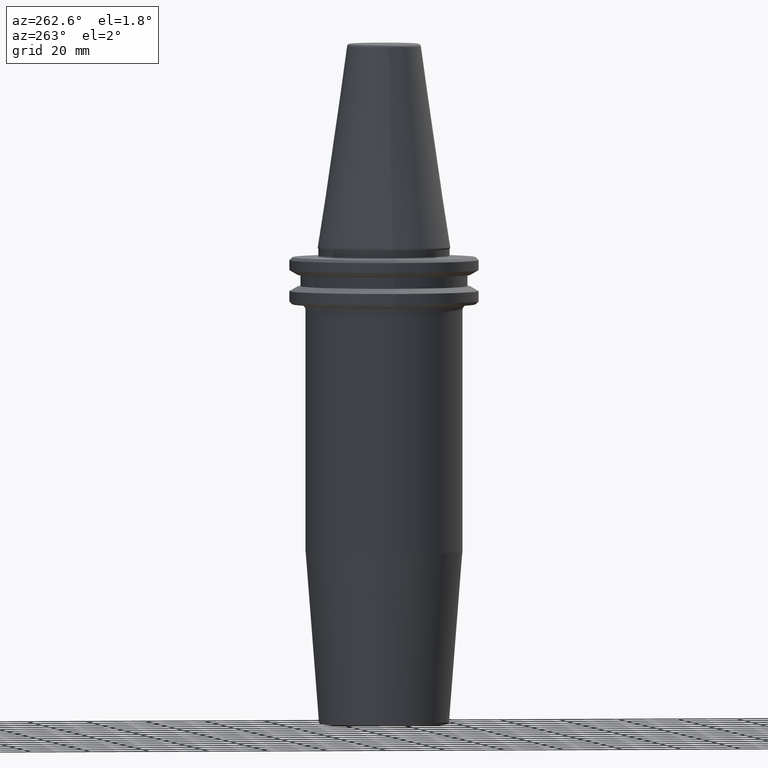
[diagram: clean part render]
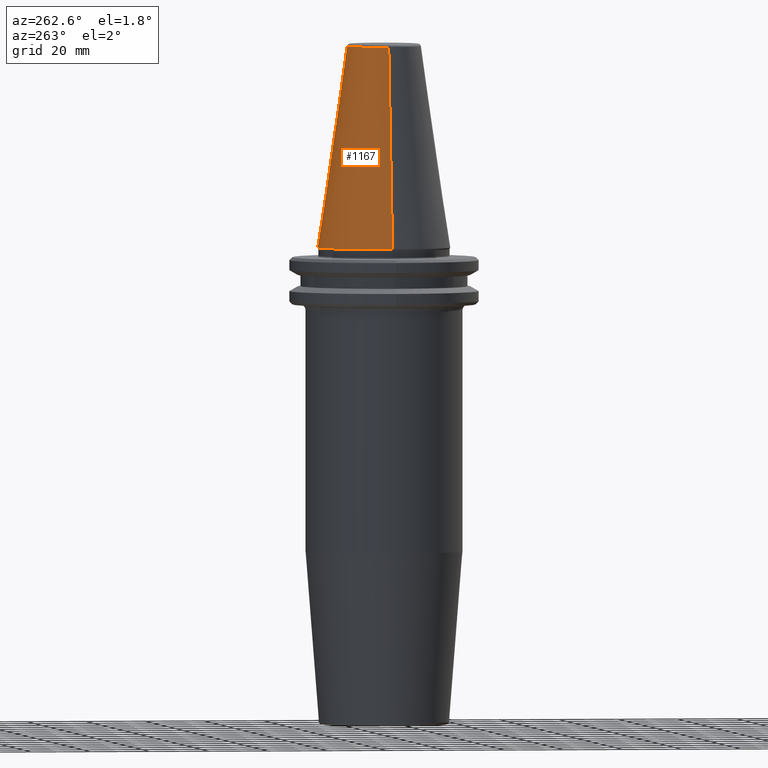
[diagram: same view with one face highlighted and labeled with its STEP entity id]
A machine part, auxiliary view. The second image highlights one B-rep face of the part: STEP entity #1167.
In plain terms, the highlighted conical surface has half-angle 8.297 deg.
Its self-contained STEP definition (entity closure, byte-faithful):
#26 = CARTESIAN_POINT ( 'NONE',  ( -12.37469537611110800, 0.0000000000000000000, 67.54430822726729400 ) ) ;
#55 = ORIENTED_EDGE ( 'NONE', *, *, #103, .T. ) ;
#61 = AXIS2_PLACEMENT_3D ( 'NONE', #828, #926, #352 ) ;
#86 = LINE ( 'NONE', #26, #1094 ) ;
#103 = EDGE_CURVE ( 'NONE', #1220, #816, #763, .T. ) ;
#170 = LINE ( 'NONE', #820, #1165 ) ;
#210 = CARTESIAN_POINT ( 'NONE',  ( -22.22500000000000500, 2.721777511104993200E-015, 0.0000000000000000000 ) ) ;
#211 = CARTESIAN_POINT ( 'NONE',  ( 12.37469537611110800, 2.118620309691397700E-015, 67.54430822726729400 ) ) ;
#232 = DIRECTION ( 'NONE',  ( -0.1443082272673071000, 0.0000000000000000000, -0.9895327864921743500 ) ) ;
#277 = VERTEX_POINT ( 'NONE', #211 ) ;
#280 = EDGE_CURVE ( 'NONE', #447, #816, #86, .T. ) ;
#309 = AXIS2_PLACEMENT_3D ( 'NONE', #1148, #567, #1241 ) ;
#320 = ORIENTED_EDGE ( 'NONE', *, *, #893, .F. ) ;
#352 = DIRECTION ( 'NONE',  ( -1.000000000000000000, 0.0000000000000000000, 0.0000000000000000000 ) ) ;
#441 = EDGE_CURVE ( 'NONE', #277, #1220, #170, .T. ) ;
#447 = VERTEX_POINT ( 'NONE', #667 ) ;
#449 = DIRECTION ( 'NONE',  ( -0.0000000000000000000, -0.0000000000000000000, 1.000000000000000000 ) ) ;
#483 = DIRECTION ( 'NONE',  ( 0.1443082272673071000, 1.767266086135364600E-017, -0.9895327864921743500 ) ) ;
#490 = CIRCLE ( 'NONE', #309, 12.37469537611110800 ) ;
#503 = AXIS2_PLACEMENT_3D ( 'NONE', #1222, #449, #1032 ) ;
#567 = DIRECTION ( 'NONE',  ( -0.0000000000000000000, -0.0000000000000000000, 1.000000000000000000 ) ) ;
#667 = CARTESIAN_POINT ( 'NONE',  ( -12.37469537611110800, 0.0000000000000000000, 67.54430822726729400 ) ) ;
#758 = EDGE_LOOP ( 'NONE', ( #320, #853, #55, #1080 ) ) ;
#763 = CIRCLE ( 'NONE', #503, 22.22500000000000500 ) ;
#816 = VERTEX_POINT ( 'NONE', #210 ) ;
#820 = CARTESIAN_POINT ( 'NONE',  ( 12.37469537611110800, 1.515463108277802100E-015, 67.54430822726729400 ) ) ;
#828 = CARTESIAN_POINT ( 'NONE',  ( 0.0000000000000000000, 0.0000000000000000000, 67.54430822726729400 ) ) ;
#853 = ORIENTED_EDGE ( 'NONE', *, *, #441, .T. ) ;
#893 = EDGE_CURVE ( 'NONE', #277, #447, #490, .T. ) ;
#926 = DIRECTION ( 'NONE',  ( 0.0000000000000000000, 0.0000000000000000000, -1.000000000000000000 ) ) ;
#928 = CARTESIAN_POINT ( 'NONE',  ( 22.22500000000000500, 0.0000000000000000000, 0.0000000000000000000 ) ) ;
#1032 = DIRECTION ( 'NONE',  ( 1.000000000000000000, 0.0000000000000000000, 0.0000000000000000000 ) ) ;
#1080 = ORIENTED_EDGE ( 'NONE', *, *, #280, .F. ) ;
#1094 = VECTOR ( 'NONE', #232, 1000.000000000000000 ) ;
#1138 = CONICAL_SURFACE ( 'NONE', #61, 12.37469537611110800, 0.1448138465474191100 ) ;
#1148 = CARTESIAN_POINT ( 'NONE',  ( 0.0000000000000000000, 0.0000000000000000000, 67.54430822726729400 ) ) ;
#1165 = VECTOR ( 'NONE', #483, 1000.000000000000000 ) ;
#1167 = ADVANCED_FACE ( 'NONE', ( #1198 ), #1138, .T. ) ;
#1198 = FACE_OUTER_BOUND ( 'NONE', #758, .T. ) ;
#1220 = VERTEX_POINT ( 'NONE', #928 ) ;
#1222 = CARTESIAN_POINT ( 'NONE',  ( 0.0000000000000000000, 0.0000000000000000000, 0.0000000000000000000 ) ) ;
#1241 = DIRECTION ( 'NONE',  ( 1.000000000000000000, 0.0000000000000000000, 0.0000000000000000000 ) ) ;